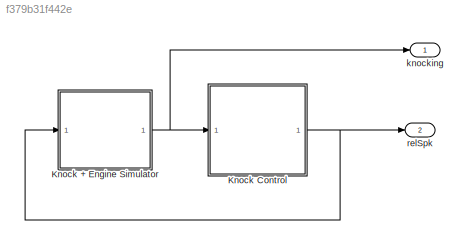
MODEL slx_f379b31f442e
KIND model
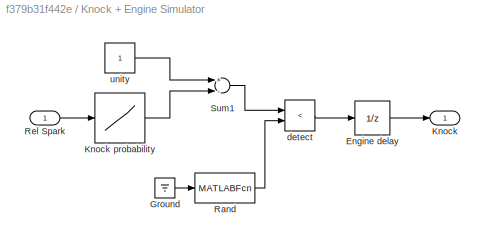
BLOCK [SubSystem] Knock + Engine Simulator
  FunctionWithSeparateData = off
  MaskHideContents = off
  MinAlgLoopOccurrences = off
  Opaque = off
  Ports = [1, 1]
  PropExecContextOutsideSubsystem = off
  RTWSystemCode = Auto
  RequestExecContextInheritance = off
BLOCK [UnitDelay] Knock + Engine Simulator/Engine delay
BLOCK [Ground] Knock + Engine Simulator/Ground
BLOCK [Outport] Knock + Engine Simulator/Knock
  IconDisplay = Port number
BLOCK [Lookup] Knock + Engine Simulator/Knock probability
  InputValues = [-3,-2.9,-2.8,-2.7,-2.6,-2.5,-2.4,-2.3,-2.2,-2.1,-2,-1.9,-1.8,-1.7,-1.6,-1.5,-1.4,-1.3,-1.2,-1.1,-1,-0.9,-0.8,-0.7,-0.6,-0.5,-0.4,-0.3,-0.2,-0.1,0,0.1,0.2,0.3,0.4,0.5,0.6,0.7,0.8,0.9,1,1.1,1.2,1.3,1.4,1.5,1.6,1.7,1.8,1.9,2,2.1,2.2,2.3,2.4,2.5,2.6,2.7,2.8,2.9,3]
  SaturateOnIntegerOverflow = off
  Table = [0,0,0,0,0,0,0,0,0,0,0,0.0000118,0.0000463,0.0001024,0.0001788,0.0002745,0.000388,0.0005184,0.0006643,0.0008246,0.001,0.0012,0.0016,0.0021,0.0028,0.0036,0.0046,0.0057,0.007,0.0084,0.01,0.0134,0.0202,0.0297,0.0417,0.0556,0.0711,0.0877,0.1049,0.1224,0.1397,0.1577,0.1776,0.1992,0.2224,0.2471,0.2732,0.3006,0.3291,0.3587,0.3892,0.4206,0.4526,0.4852,0.5183,0.5518,0.5855,0.6194,0.6533,0.6871,0.7207]
BLOCK [MATLABFcn] Knock + Engine Simulator/Rand
  MATLABFcn = rand(1)
  OutputDimensions = 1
  Ports = [1, 1]
  SampleTime = [1 0]
BLOCK [Inport] Knock + Engine Simulator/Rel Spark
  IconDisplay = Port number
BLOCK [Sum] Knock + Engine Simulator/Sum1
  InputSameDT = off
  Inputs = +-
  OutDataTypeStr = Inherit: Inherit via internal rule
  Ports = [2, 1]
  SaturateOnIntegerOverflow = off
BLOCK [RelationalOperator] Knock + Engine Simulator/detect
  InputSameDT = off
  Operator = <
  OutDataTypeStr = boolean
  Ports = [2, 1]
BLOCK [Constant] Knock + Engine Simulator/unity
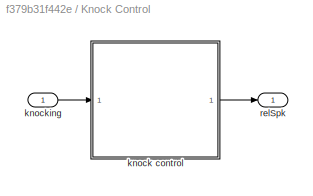
BLOCK [SubSystem] Knock Control
  FunctionWithSeparateData = off
  MaskHideContents = off
  MinAlgLoopOccurrences = off
  Opaque = off
  Ports = [1, 1]
  PropExecContextOutsideSubsystem = off
  RTWSystemCode = Auto
  RequestExecContextInheritance = off
  TreatAsAtomicUnit = on
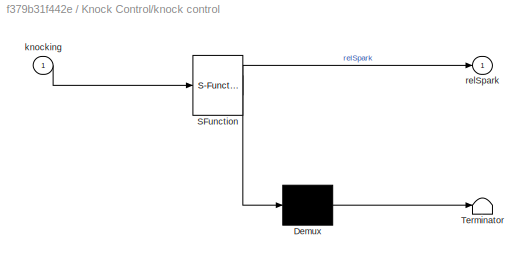
BLOCK [SubSystem] Knock Control/knock control
  ErrorFcn = Stateflow.Translate.translate
  FunctionWithSeparateData = off
  MaskHideContents = off
  MinAlgLoopOccurrences = off
  Opaque = off
  PermitHierarchicalResolution = ExplicitOnly
  Ports = [1, 1]
  PropExecContextOutsideSubsystem = off
  RTWSystemCode = Auto
  RequestExecContextInheritance = off
  SFBlockType = MATLAB Function
  TreatAsAtomicUnit = on
BLOCK [Demux] Knock Control/knock control/ Demux 
  Outputs = 1
  Ports = [1, 1]
BLOCK [S-Function] Knock Control/knock control/ SFunction 
  EnableBusSupport = on
  FunctionName = sf_sfun
  Parameters = advanceGain,initialSpark,retardGain
  PortCounts = [1 2]
  Ports = [1, 2]
  Tag = Stateflow S-Function knock0old 2
BLOCK [Terminator] Knock Control/knock control/ Terminator 
BLOCK [Inport] Knock Control/knock control/knocking
  IconDisplay = Port number
BLOCK [Outport] Knock Control/knock control/relSpark
  IconDisplay = Port number
BLOCK [Inport] Knock Control/knocking
  IconDisplay = Port number
BLOCK [Outport] Knock Control/relSpk
  IconDisplay = Port number
BLOCK [Outport] knocking
  IconDisplay = Port number
BLOCK [Outport] relSpk
  IconDisplay = Port number
  Port = 2
LINE Knock + Engine Simulator/Engine delay:1 -> Knock + Engine Simulator/Knock:1
LINE Knock + Engine Simulator/Ground:1 -> Knock + Engine Simulator/Rand:1
LINE Knock + Engine Simulator/Knock probability:1 -> Knock + Engine Simulator/Sum1:2
LINE Knock + Engine Simulator/Rand:1 -> Knock + Engine Simulator/detect:2
LINE Knock + Engine Simulator/Rel Spark:1 -> Knock + Engine Simulator/Knock probability:1
LINE Knock + Engine Simulator/Sum1:1 -> Knock + Engine Simulator/detect:1
LINE Knock + Engine Simulator/detect:1 -> Knock + Engine Simulator/Engine delay:1
LINE Knock + Engine Simulator/unity:1 -> Knock + Engine Simulator/Sum1:1
NET Knock + Engine Simulator:1 -> Knock Control:1, knocking:1
LINE Knock Control/knock control:1 -> Knock Control/relSpk:1
LINE Knock Control/knocking:1 -> Knock Control/knock control:1
NET Knock Control:1 -> Knock + Engine Simulator:1, relSpk:1
note: NET lines group one-source signal fan-out (src -> all destinations, sorted); 1:1 wires keep LINE
